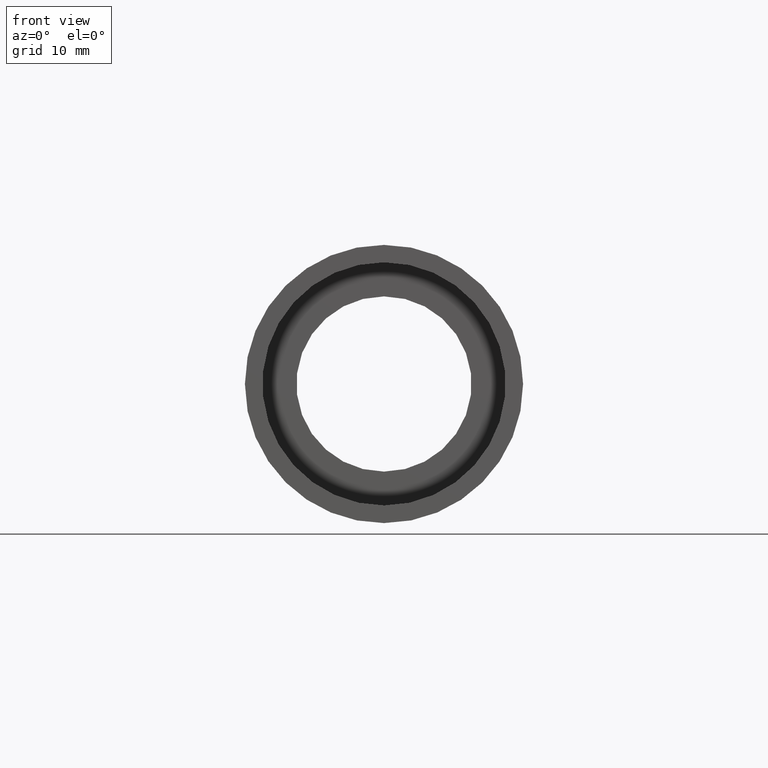
[diagram: clean part render]
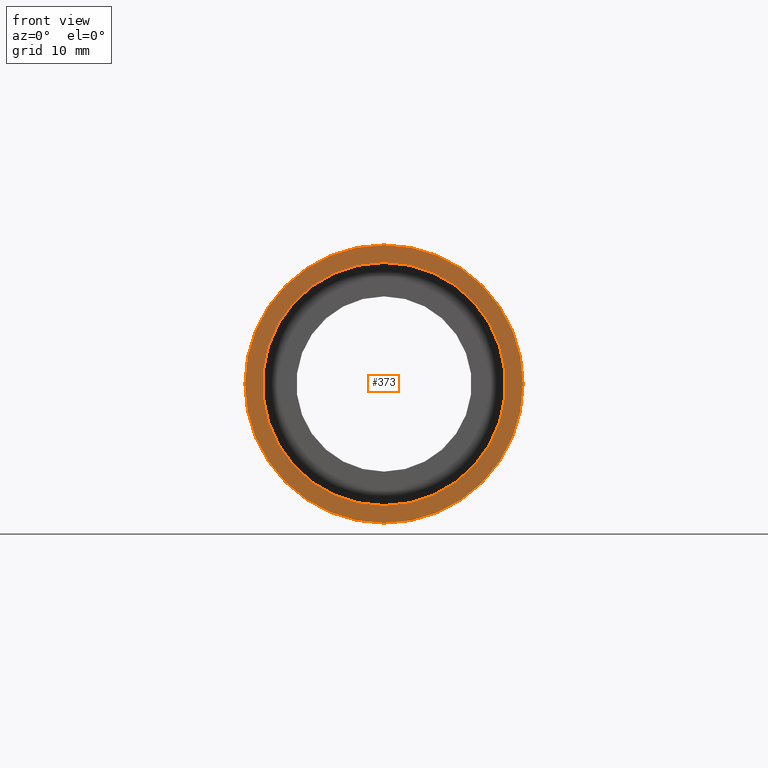
[diagram: same view with one face highlighted and labeled with its STEP entity id]
A machine part, front view. The second image highlights one B-rep face of the part: STEP entity #373.
In plain terms, the highlighted planar face has unit normal (-0, 1, 0).
Its self-contained STEP definition (entity closure, byte-faithful):
#67 = DIRECTION ( 'NONE',  ( 0.0000000000000000000, 0.0000000000000000000, 1.000000000000000000 ) ) ;
#77 = EDGE_CURVE ( 'NONE', #466, #360, #443, .T. ) ;
#104 = AXIS2_PLACEMENT_3D ( 'NONE', #496, #202, #255 ) ;
#139 = CARTESIAN_POINT ( 'NONE',  ( 0.0000000000000000000, -2.775557561562891400E-014, 0.0000000000000000000 ) ) ;
#140 = EDGE_CURVE ( 'NONE', #360, #466, #596, .T. ) ;
#160 = DIRECTION ( 'NONE',  ( -0.0000000000000000000, 1.000000000000000000, -0.0000000000000000000 ) ) ;
#174 = EDGE_CURVE ( 'NONE', #519, #330, #369, .T. ) ;
#189 = FACE_BOUND ( 'NONE', #448, .T. ) ;
#191 = FACE_OUTER_BOUND ( 'NONE', #299, .T. ) ;
#193 = AXIS2_PLACEMENT_3D ( 'NONE', #551, #160, #593 ) ;
#202 = DIRECTION ( 'NONE',  ( -0.0000000000000000000, 1.000000000000000000, -0.0000000000000000000 ) ) ;
#211 = CARTESIAN_POINT ( 'NONE',  ( 0.0000000000000000000, -2.775557561562891400E-014, 12.70000000000001900 ) ) ;
#230 = EDGE_CURVE ( 'NONE', #330, #519, #325, .T. ) ;
#252 = CARTESIAN_POINT ( 'NONE',  ( 0.0000000000000000000, -2.775557561562891400E-014, 11.10000000000002300 ) ) ;
#255 = DIRECTION ( 'NONE',  ( 0.0000000000000000000, 0.0000000000000000000, 1.000000000000000000 ) ) ;
#280 = ORIENTED_EDGE ( 'NONE', *, *, #140, .T. ) ;
#299 = EDGE_LOOP ( 'NONE', ( #603, #489 ) ) ;
#304 = CARTESIAN_POINT ( 'NONE',  ( 11.10000000000002300, -1.590039098016662300E-014, 0.0000000000000000000 ) ) ;
#314 = DIRECTION ( 'NONE',  ( -0.0000000000000000000, 1.000000000000000000, -0.0000000000000000000 ) ) ;
#325 = CIRCLE ( 'NONE', #573, 12.70000000000001900 ) ;
#330 = VERTEX_POINT ( 'NONE', #487 ) ;
#341 = DIRECTION ( 'NONE',  ( 0.0000000000000000000, 0.0000000000000000000, 1.000000000000000000 ) ) ;
#358 = CARTESIAN_POINT ( 'NONE',  ( 1.359357947053564900E-015, -2.775557561562891400E-014, -11.10000000000002300 ) ) ;
#360 = VERTEX_POINT ( 'NONE', #252 ) ;
#369 = CIRCLE ( 'NONE', #624, 12.70000000000001900 ) ;
#373 = ADVANCED_FACE ( 'NONE', ( #191, #189 ), #454, .F. ) ;
#377 = DIRECTION ( 'NONE',  ( 0.0000000000000000000, 0.0000000000000000000, 1.000000000000000000 ) ) ;
#443 = CIRCLE ( 'NONE', #104, 11.10000000000002300 ) ;
#446 = DIRECTION ( 'NONE',  ( -0.0000000000000000000, 1.000000000000000000, 0.0000000000000000000 ) ) ;
#448 = EDGE_LOOP ( 'NONE', ( #280, #456 ) ) ;
#454 = PLANE ( 'NONE',  #543 ) ;
#456 = ORIENTED_EDGE ( 'NONE', *, *, #77, .T. ) ;
#466 = VERTEX_POINT ( 'NONE', #358 ) ;
#487 = CARTESIAN_POINT ( 'NONE',  ( 1.555301434917140800E-015, -2.775557561562891400E-014, -12.70000000000001900 ) ) ;
#489 = ORIENTED_EDGE ( 'NONE', *, *, #230, .F. ) ;
#496 = CARTESIAN_POINT ( 'NONE',  ( 0.0000000000000000000, -2.775557561562891400E-014, 0.0000000000000000000 ) ) ;
#519 = VERTEX_POINT ( 'NONE', #211 ) ;
#543 = AXIS2_PLACEMENT_3D ( 'NONE', #304, #446, #341 ) ;
#551 = CARTESIAN_POINT ( 'NONE',  ( 0.0000000000000000000, -2.775557561562891400E-014, 0.0000000000000000000 ) ) ;
#573 = AXIS2_PLACEMENT_3D ( 'NONE', #139, #617, #377 ) ;
#593 = DIRECTION ( 'NONE',  ( 0.0000000000000000000, 0.0000000000000000000, 1.000000000000000000 ) ) ;
#596 = CIRCLE ( 'NONE', #193, 11.10000000000002300 ) ;
#601 = CARTESIAN_POINT ( 'NONE',  ( 0.0000000000000000000, -2.775557561562891400E-014, 0.0000000000000000000 ) ) ;
#603 = ORIENTED_EDGE ( 'NONE', *, *, #174, .F. ) ;
#617 = DIRECTION ( 'NONE',  ( -0.0000000000000000000, 1.000000000000000000, -0.0000000000000000000 ) ) ;
#624 = AXIS2_PLACEMENT_3D ( 'NONE', #601, #314, #67 ) ;